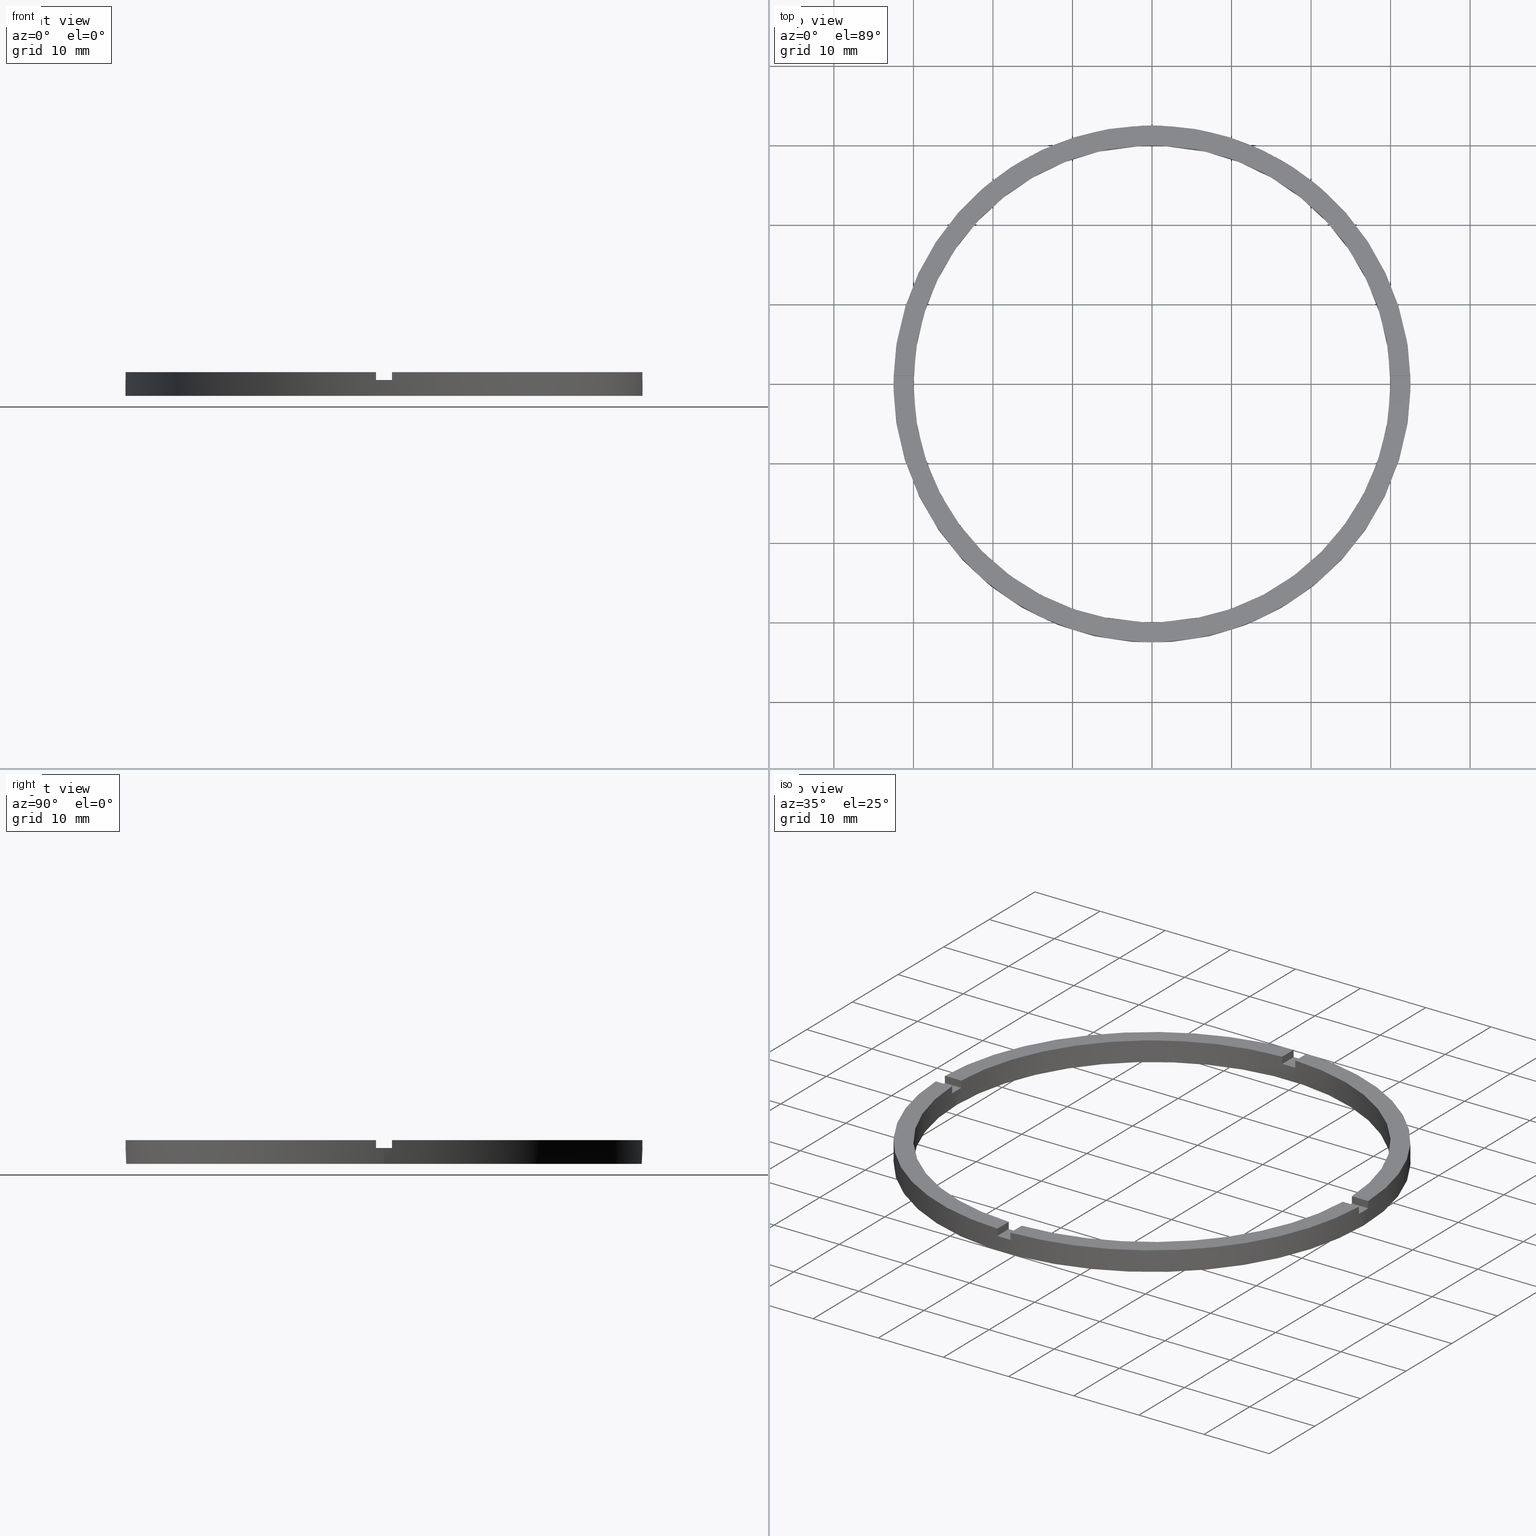
[diagram: canonical four-view strip — front | top / right | iso, engineering-drawing reading convention]
A machine part, canonical four-view strip (front | top / right | iso — engineering-drawing reading convention). The complete STEP part file that produces these views, byte-faithful:
ISO-10303-21;
HEADER;
FILE_DESCRIPTION (( 'STEP AP203' ),
    '1' );
FILE_NAME ('514135.step',
    '2024-12-26T02:40:53',
    ( 'MSI' ),
    ( '' ),
    'SwSTEP 2.0',
    'SolidWorks 2020',
    '' );
FILE_SCHEMA (( 'CONFIG_CONTROL_DESIGN' ));
ENDSEC;

DATA;
#1 = AXIS2_PLACEMENT_3D ( 'NONE', #757, #752, #563 ) ;
#2 = DIRECTION ( 'NONE',  ( -0.000000000000000000, -0.000000000000000000, -1.000000000000000000 ) ) ;
#3 = AXIS2_PLACEMENT_3D ( 'NONE', #539, #257, #454 ) ;
#4 = EDGE_CURVE ( 'NONE', #588, #58, #573, .T. ) ;
#5 = PLANE ( 'NONE',  #286 ) ;
#6 = EDGE_CURVE ( 'NONE', #388, #27, #32, .T. ) ;
#7 = CARTESIAN_POINT ( 'NONE',  ( -1.000000000000161648, -29.98332870112989212, 2.000000000000000000 ) ) ;
#8 = PLANE ( 'NONE',  #88 ) ;
#9 = FACE_OUTER_BOUND ( 'NONE', #36, .T. ) ;
#10 = PERSON_AND_ORGANIZATION_ROLE ( 'creator' ) ;
#11 = VECTOR ( 'NONE', #478, 1000.000000000000000 ) ;
#12 = CYLINDRICAL_SURFACE ( 'NONE', #142, 32.50000000000000000 ) ;
#13 = DIRECTION ( 'NONE',  ( 1.000000000000000000, 0.000000000000000000, 0.000000000000000000 ) ) ;
#14 = CARTESIAN_POINT ( 'NONE',  ( 0.000000000000000000, 0.000000000000000000, 0.000000000000000000 ) ) ;
#15 = AXIS2_PLACEMENT_3D ( 'NONE', #90, #268, #776 ) ;
#16 = CARTESIAN_POINT ( 'NONE',  ( -32.50000000000000000, 0.000000000000000000, 2.000000000000000000 ) ) ;
#17 = DIRECTION ( 'NONE',  ( 0.000000000000000000, 0.000000000000000000, 1.000000000000000000 ) ) ;
#18 = VECTOR ( 'NONE', #780, 1000.000000000000000 ) ;
#19 = FACE_OUTER_BOUND ( 'NONE', #40, .T. ) ;
#20 = EDGE_CURVE ( 'NONE', #311, #689, #566, .T. ) ;
#21 = VECTOR ( 'NONE', #762, 1000.000000000000000 ) ;
#22 = CARTESIAN_POINT ( 'NONE',  ( -32.50000000000000000, 0.000000000000000000, 3.000000000000000000 ) ) ;
#23 = LINE ( 'NONE', #578, #48 ) ;
#24 = CIRCLE ( 'NONE', #522, 30.00000000000000000 ) ;
#25 = FACE_OUTER_BOUND ( 'NONE', #698, .T. ) ;
#26 = CARTESIAN_POINT ( 'NONE',  ( -1.000000000000024647, 22.50000000000000000, 3.000000000000000000 ) ) ;
#27 = VERTEX_POINT ( 'NONE', #102 ) ;
#28 = FACE_OUTER_BOUND ( 'NONE', #178, .T. ) ;
#29 = VECTOR ( 'NONE', #495, 1000.000000000000000 ) ;
#30 = DIRECTION ( 'NONE',  ( 1.000000000000000000, 0.000000000000000000, 0.000000000000000000 ) ) ;
#31 = LINE ( 'NONE', #137, #572 ) ;
#32 = CIRCLE ( 'NONE', #15, 32.50000000000000000 ) ;
#33 = DIRECTION ( 'NONE',  ( 0.000000000000000000, 0.000000000000000000, 1.000000000000000000 ) ) ;
#34 = LINE ( 'NONE', #717, #310 ) ;
#35 = FACE_OUTER_BOUND ( 'NONE', #357, .T. ) ;
#36 = EDGE_LOOP ( 'NONE', ( #430, #467, #368, #706 ) ) ;
#37 = CARTESIAN_POINT ( 'NONE',  ( -1.000000000000161426, -32.48461174156157227, 2.000000000000000000 ) ) ;
#38 = CYLINDRICAL_SURFACE ( 'NONE', #657, 32.50000000000000000 ) ;
#39 = VECTOR ( 'NONE', #409, 1000.000000000000000 ) ;
#40 = EDGE_LOOP ( 'NONE', ( #283, #575, #571, #185 ) ) ;
#41 = PRODUCT_DEFINITION ( 'δ֪', '', #391, #686 ) ;
#42 = DIRECTION ( 'NONE',  ( -0.000000000000000000, -0.000000000000000000, -1.000000000000000000 ) ) ;
#43 = LINE ( 'NONE', #92, #574 ) ;
#44 = AXIS2_PLACEMENT_3D ( 'NONE', #399, #402, #449 ) ;
#45 = VECTOR ( 'NONE', #623, 1000.000000000000000 ) ;
#46 = ORIENTED_EDGE ( 'NONE', *, *, #271, .T. ) ;
#47 = LINE ( 'NONE', #389, #45 ) ;
#48 = VECTOR ( 'NONE', #485, 1000.000000000000000 ) ;
#49 = VERTEX_POINT ( 'NONE', #536 ) ;
#50 = LINE ( 'NONE', #152, #582 ) ;
#51 = CARTESIAN_POINT ( 'NONE',  ( 22.49999999999999645, 0.9999999999998409050, 2.000000000000000000 ) ) ;
#52 = FACE_OUTER_BOUND ( 'NONE', #708, .T. ) ;
#53 = ADVANCED_FACE ( 'NONE', ( #296 ), #12, .T. ) ;
#54 = CC_DESIGN_APPROVAL ( #81, ( #41 ) ) ;
#55 = LINE ( 'NONE', #413, #319 ) ;
#56 = VECTOR ( 'NONE', #729, 1000.000000000000000 ) ;
#57 = AXIS2_PLACEMENT_3D ( 'NONE', #190, #134, #516 ) ;
#58 = VERTEX_POINT ( 'NONE', #16 ) ;
#59 = VECTOR ( 'NONE', #617, 1000.000000000000000 ) ;
#60 = EDGE_CURVE ( 'NONE', #422, #168, #285, .T. ) ;
#61 = EDGE_CURVE ( 'NONE', #425, #439, #553, .T. ) ;
#62 = DIRECTION ( 'NONE',  ( 0.000000000000000000, 0.000000000000000000, 1.000000000000000000 ) ) ;
#63 = ADVANCED_FACE ( 'NONE', ( #35 ), #38, .T. ) ;
#64 = CARTESIAN_POINT ( 'NONE',  ( 32.50000000000000000, 3.980102097228898626E-15, 2.000000000000000000 ) ) ;
#65 = ORIENTED_EDGE ( 'NONE', *, *, #513, .T. ) ;
#66 = CARTESIAN_POINT ( 'NONE',  ( 0.000000000000000000, 0.000000000000000000, 3.000000000000000000 ) ) ;
#67 = DIRECTION ( 'NONE',  ( -1.000000000000000000, 0.000000000000000000, 0.000000000000000000 ) ) ;
#68 = ORIENTED_EDGE ( 'NONE', *, *, #244, .T. ) ;
#69 = ORIENTED_EDGE ( 'NONE', *, *, #490, .T. ) ;
#70 = DIRECTION ( 'NONE',  ( 1.000000000000000000, 1.951563910473908228E-16, -0.000000000000000000 ) ) ;
#71 = ORIENTED_EDGE ( 'NONE', *, *, #417, .F. ) ;
#72 = CARTESIAN_POINT ( 'NONE',  ( 32.48461174156157227, -1.000000000000158540, 3.000000000000000000 ) ) ;
#73 = ORIENTED_EDGE ( 'NONE', *, *, #781, .F. ) ;
#74 = EDGE_LOOP ( 'NONE', ( #694, #683, #577, #177, #69, #737, #479, #455, #714, #621, #173, #695 ) ) ;
#75 = DIRECTION ( 'NONE',  ( -0.000000000000000000, 0.000000000000000000, 1.000000000000000000 ) ) ;
#76 = CARTESIAN_POINT ( 'NONE',  ( 29.98332870112989212, -1.000000000000158762, 3.000000000000000000 ) ) ;
#77 = ORIENTED_EDGE ( 'NONE', *, *, #60, .F. ) ;
#78 = DIRECTION ( 'NONE',  ( 1.000000000000000000, 0.000000000000000000, 0.000000000000000000 ) ) ;
#79 = CARTESIAN_POINT ( 'NONE',  ( 22.49999999999999645, 0.9999999999998409050, 2.000000000000000000 ) ) ;
#80 = VERTEX_POINT ( 'NONE', #774 ) ;
#81 = APPROVAL ( #518, 'δָ��' ) ;
#82 = DATE_TIME_ROLE ( 'creation_date' ) ;
#83 = ORIENTED_EDGE ( 'NONE', *, *, #267, .T. ) ;
#84 = DIRECTION ( 'NONE',  ( 1.000000000000000000, 0.000000000000000000, 0.000000000000000000 ) ) ;
#85 = CARTESIAN_POINT ( 'NONE',  ( -32.48461174156157227, -1.000000000000025979, 3.000000000000000000 ) ) ;
#86 = FACE_OUTER_BOUND ( 'NONE', #739, .T. ) ;
#87 = VECTOR ( 'NONE', #70, 1000.000000000000000 ) ;
#88 = AXIS2_PLACEMENT_3D ( 'NONE', #533, #496, #352 ) ;
#89 = FACE_OUTER_BOUND ( 'NONE', #427, .T. ) ;
#90 = CARTESIAN_POINT ( 'NONE',  ( 0.000000000000000000, 0.000000000000000000, 3.000000000000000000 ) ) ;
#91 = EDGE_CURVE ( 'NONE', #600, #677, #540, .T. ) ;
#92 = CARTESIAN_POINT ( 'NONE',  ( -1.000000000000024647, 32.48461174156157227, 3.000000000000000000 ) ) ;
#93 = EDGE_CURVE ( 'NONE', #476, #731, #542, .T. ) ;
#94 = VECTOR ( 'NONE', #772, 1000.000000000000000 ) ;
#95 = CARTESIAN_POINT ( 'NONE',  ( -22.50000000000018474, -1.000000000000023981, 2.000000000000000000 ) ) ;
#96 = ORIENTED_EDGE ( 'NONE', *, *, #273, .F. ) ;
#97 = AXIS2_PLACEMENT_3D ( 'NONE', #652, #770, #30 ) ;
#98 = ORIENTED_EDGE ( 'NONE', *, *, #316, .F. ) ;
#99 = DIRECTION ( 'NONE',  ( -1.000000000000000000, -1.951563910473908228E-16, 0.000000000000000000 ) ) ;
#100 = ORIENTED_EDGE ( 'NONE', *, *, #316, .T. ) ;
#101 = LINE ( 'NONE', #280, #370 ) ;
#102 = CARTESIAN_POINT ( 'NONE',  ( 0.9999999999999753530, 32.48461174156157227, 3.000000000000000000 ) ) ;
#103 = EDGE_CURVE ( 'NONE', #705, #333, #557, .T. ) ;
#104 = ORIENTED_EDGE ( 'NONE', *, *, #506, .T. ) ;
#105 = VECTOR ( 'NONE', #263, 1000.000000000000000 ) ;
#106 = CARTESIAN_POINT ( 'NONE',  ( -32.48461174156157227, -1.000000000000025979, 2.000000000000000000 ) ) ;
#107 = CARTESIAN_POINT ( 'NONE',  ( 0.000000000000000000, 0.000000000000000000, 0.000000000000000000 ) ) ;
#108 = CC_DESIGN_DATE_AND_TIME_ASSIGNMENT ( #722, #753, ( #269 ) ) ;
#109 = LINE ( 'NONE', #274, #358 ) ;
#110 = CARTESIAN_POINT ( 'NONE',  ( -29.98332870112989568, -1.000000000000025535, 3.000000000000000000 ) ) ;
#111 = ADVANCED_FACE ( 'NONE', ( #288 ), #740, .F. ) ;
#112 = FACE_OUTER_BOUND ( 'NONE', #596, .T. ) ;
#113 = VECTOR ( 'NONE', #408, 1000.000000000000000 ) ;
#114 = CIRCLE ( 'NONE', #543, 32.50000000000000000 ) ;
#115 = DIRECTION ( 'NONE',  ( 0.000000000000000000, 0.000000000000000000, 1.000000000000000000 ) ) ;
#116 = LINE ( 'NONE', #437, #382 ) ;
#117 = AXIS2_PLACEMENT_3D ( 'NONE', #360, #414, #419 ) ;
#118 = VECTOR ( 'NONE', #771, 1000.000000000000000 ) ;
#119 = FACE_OUTER_BOUND ( 'NONE', #188, .T. ) ;
#120 = DIRECTION ( 'NONE',  ( -1.000000000000000000, -1.301042606982605074E-16, 0.000000000000000000 ) ) ;
#121 = ADVANCED_FACE ( 'NONE', ( #9 ), #371, .F. ) ;
#122 = CARTESIAN_POINT ( 'NONE',  ( -29.98332870112989568, -1.000000000000025535, 2.000000000000000000 ) ) ;
#123 = CIRCLE ( 'NONE', #520, 30.00000000000000000 ) ;
#124 = CC_DESIGN_PERSON_AND_ORGANIZATION_ASSIGNMENT ( #227, #693, ( #324 ) ) ;
#125 = DIRECTION ( 'NONE',  ( 1.301042606982605074E-16, -1.000000000000000000, 0.000000000000000000 ) ) ;
#126 = DIRECTION ( 'NONE',  ( 1.000000000000000000, 0.000000000000000000, -0.000000000000000000 ) ) ;
#127 = VECTOR ( 'NONE', #541, 1000.000000000000000 ) ;
#128 = PLANE ( 'NONE',  #690 ) ;
#129 = AXIS2_PLACEMENT_3D ( 'NONE', #746, #783, #67 ) ;
#130 = CARTESIAN_POINT ( 'NONE',  ( -32.50000000000000000, 0.000000000000000000, 0.000000000000000000 ) ) ;
#131 = PLANE ( 'NONE',  #601 ) ;
#132 = EDGE_CURVE ( 'NONE', #585, #80, #24, .T. ) ;
#133 = EDGE_CURVE ( 'NONE', #420, #27, #278, .T. ) ;
#134 = DIRECTION ( 'NONE',  ( -0.000000000000000000, 0.000000000000000000, 1.000000000000000000 ) ) ;
#135 = EDGE_CURVE ( 'NONE', #422, #147, #279, .T. ) ;
#136 = PLANE ( 'NONE',  #412 ) ;
#137 = CARTESIAN_POINT ( 'NONE',  ( 32.48461174156157938, 0.9999999999998414602, 3.000000000000000000 ) ) ;
#138 = CARTESIAN_POINT ( 'NONE',  ( 0.9999999999999753530, 29.98332870112989923, 2.000000000000000000 ) ) ;
#139 = APPROVAL_STATUS ( 'not_yet_approved' ) ;
#140 = CARTESIAN_POINT ( 'NONE',  ( 0.000000000000000000, 0.000000000000000000, 2.000000000000000000 ) ) ;
#141 = CARTESIAN_POINT ( 'NONE',  ( 29.98332870112989212, -1.000000000000158762, 3.000000000000000000 ) ) ;
#142 = AXIS2_PLACEMENT_3D ( 'NONE', #603, #154, #764 ) ;
#143 = CARTESIAN_POINT ( 'NONE',  ( -1.000000000000024647, 22.50000000000000000, 2.000000000000000000 ) ) ;
#144 = ORIENTED_EDGE ( 'NONE', *, *, #648, .T. ) ;
#145 = DIRECTION ( 'NONE',  ( 1.000000000000000000, 0.000000000000000000, -0.000000000000000000 ) ) ;
#146 = ORIENTED_EDGE ( 'NONE', *, *, #251, .F. ) ;
#147 = VERTEX_POINT ( 'NONE', #72 ) ;
#148 = EDGE_CURVE ( 'NONE', #356, #49, #554, .T. ) ;
#149 = PLANE ( 'NONE',  #748 ) ;
#150 = ORIENTED_EDGE ( 'NONE', *, *, #701, .F. ) ;
#151 = VERTEX_POINT ( 'NONE', #691 ) ;
#152 = CARTESIAN_POINT ( 'NONE',  ( 0.9999999999999753530, 29.98332870112989923, 3.000000000000000000 ) ) ;
#153 = ORIENTED_EDGE ( 'NONE', *, *, #103, .F. ) ;
#154 = DIRECTION ( 'NONE',  ( -0.000000000000000000, -0.000000000000000000, -1.000000000000000000 ) ) ;
#155 = CARTESIAN_POINT ( 'NONE',  ( 0.000000000000000000, 0.000000000000000000, 2.000000000000000000 ) ) ;
#156 = EDGE_LOOP ( 'NONE', ( #196, #157, #458, #453 ) ) ;
#157 = ORIENTED_EDGE ( 'NONE', *, *, #417, .T. ) ;
#158 = DIRECTION ( 'NONE',  ( 0.000000000000000000, 0.000000000000000000, 1.000000000000000000 ) ) ;
#159 = ORIENTED_EDGE ( 'NONE', *, *, #267, .F. ) ;
#160 = ADVANCED_FACE ( 'NONE', ( #19 ), #5, .F. ) ;
#161 = ORIENTED_EDGE ( 'NONE', *, *, #166, .F. ) ;
#162 = CARTESIAN_POINT ( 'NONE',  ( 0.9999999999999753530, 22.50000000000000000, 2.000000000000000000 ) ) ;
#163 = VERTEX_POINT ( 'NONE', #138 ) ;
#164 = VERTEX_POINT ( 'NONE', #258 ) ;
#165 = ORIENTED_EDGE ( 'NONE', *, *, #246, .F. ) ;
#166 = EDGE_CURVE ( 'NONE', #439, #434, #289, .T. ) ;
#167 = ORIENTED_EDGE ( 'NONE', *, *, #428, .T. ) ;
#168 = VERTEX_POINT ( 'NONE', #570 ) ;
#169 = EDGE_LOOP ( 'NONE', ( #702, #144 ) ) ;
#170 = DIRECTION ( 'NONE',  ( 1.000000000000000000, 0.000000000000000000, -0.000000000000000000 ) ) ;
#171 = ORIENTED_EDGE ( 'NONE', *, *, #606, .T. ) ;
#172 = ORIENTED_EDGE ( 'NONE', *, *, #326, .F. ) ;
#173 = ORIENTED_EDGE ( 'NONE', *, *, #661, .T. ) ;
#174 = ORIENTED_EDGE ( 'NONE', *, *, #326, .T. ) ;
#175 = EDGE_CURVE ( 'NONE', #452, #446, #545, .T. ) ;
#176 = ORIENTED_EDGE ( 'NONE', *, *, #132, .F. ) ;
#177 = ORIENTED_EDGE ( 'NONE', *, *, #265, .F. ) ;
#178 = EDGE_LOOP ( 'NONE', ( #718, #704, #96, #613 ) ) ;
#179 = ORIENTED_EDGE ( 'NONE', *, *, #271, .F. ) ;
#180 = LOCAL_TIME ( 10, 40, 53.00000000000000000, #473 ) ;
#181 = CARTESIAN_POINT ( 'NONE',  ( 0.000000000000000000, 0.000000000000000000, 2.000000000000000000 ) ) ;
#182 = ORIENTED_EDGE ( 'NONE', *, *, #515, .T. ) ;
#183 = ORIENTED_EDGE ( 'NONE', *, *, #611, .T. ) ;
#184 = CALENDAR_DATE ( 2024, 26, 12 ) ;
#185 = ORIENTED_EDGE ( 'NONE', *, *, #515, .F. ) ;
#186 = ORIENTED_EDGE ( 'NONE', *, *, #749, .T. ) ;
#187 = APPROVAL_DATE_TIME ( #728, #81 ) ;
#188 = EDGE_LOOP ( 'NONE', ( #465, #699, #378, #165, #712, #100 ) ) ;
#189 = ORIENTED_EDGE ( 'NONE', *, *, #148, .F. ) ;
#190 = CARTESIAN_POINT ( 'NONE',  ( 0.000000000000000000, 0.000000000000000000, 2.000000000000000000 ) ) ;
#191 = ORIENTED_EDGE ( 'NONE', *, *, #244, .F. ) ;
#192 = ORIENTED_EDGE ( 'NONE', *, *, #749, .F. ) ;
#193 = CARTESIAN_POINT ( 'NONE',  ( 0.000000000000000000, 0.000000000000000000, 3.000000000000000000 ) ) ;
#194 = ORIENTED_EDGE ( 'NONE', *, *, #4, .T. ) ;
#195 = PERSON_AND_ORGANIZATION ( #220, #719 ) ;
#196 = ORIENTED_EDGE ( 'NONE', *, *, #707, .T. ) ;
#197 = AXIS2_PLACEMENT_3D ( 'NONE', #559, #75, #305 ) ;
#198 = APPROVAL_PERSON_ORGANIZATION ( #480, #696, #224 ) ;
#199 = AXIS2_PLACEMENT_3D ( 'NONE', #229, #767, #145 ) ;
#200 = EDGE_LOOP ( 'NONE', ( #315, #176, #482, #460 ) ) ;
#201 = COORDINATED_UNIVERSAL_TIME_OFFSET ( 8, 0, .AHEAD. ) ;
#202 =( NAMED_UNIT ( * ) SI_UNIT ( $, .STERADIAN. ) SOLID_ANGLE_UNIT ( ) );
#203 = ORIENTED_EDGE ( 'NONE', *, *, #93, .T. ) ;
#204 = ADVANCED_FACE ( 'NONE', ( #294 ), #128, .F. ) ;
#205 = DIRECTION ( 'NONE',  ( 0.000000000000000000, 0.000000000000000000, 1.000000000000000000 ) ) ;
#206 = LOCAL_TIME ( 10, 40, 53.00000000000000000, #503 ) ;
#207 = CALENDAR_DATE ( 2024, 26, 12 ) ;
#208 = CC_DESIGN_APPROVAL ( #696, ( #391 ) ) ;
#209 = ORIENTED_EDGE ( 'NONE', *, *, #217, .T. ) ;
#210 = DATE_AND_TIME ( #184, #469 ) ;
#211 = DIRECTION ( 'NONE',  ( 0.000000000000000000, 0.000000000000000000, 1.000000000000000000 ) ) ;
#212 = AXIS2_PLACEMENT_3D ( 'NONE', #761, #222, #338 ) ;
#213 = EDGE_CURVE ( 'NONE', #727, #418, #562, .T. ) ;
#214 = APPROVAL_DATE_TIME ( #210, #730 ) ;
#215 = DIRECTION ( 'NONE',  ( -1.000000000000000000, 0.000000000000000000, 0.000000000000000000 ) ) ;
#216 = EDGE_LOOP ( 'NONE', ( #340, #353, #71, #77 ) ) ;
#217 = EDGE_CURVE ( 'NONE', #356, #443, #308, .T. ) ;
#218 = APPROVAL_PERSON_ORGANIZATION ( #475, #81, #565 ) ;
#219 = DIRECTION ( 'NONE',  ( -1.000000000000000000, -6.505213034913022906E-17, 0.000000000000000000 ) ) ;
#220 = PERSON ( 'δָ��', 'δָ��', 'δָ��', ('δָ��'), ('δָ��'), ('δָ��') ) ;
#221 = DIRECTION ( 'NONE',  ( 0.000000000000000000, 0.000000000000000000, 1.000000000000000000 ) ) ;
#222 = DIRECTION ( 'NONE',  ( 0.000000000000000000, 0.000000000000000000, 1.000000000000000000 ) ) ;
#223 = PLANE ( 'NONE',  #447 ) ;
#224 = APPROVAL_ROLE ( '' ) ;
#225 = CARTESIAN_POINT ( 'NONE',  ( 0.9999999999998384625, -29.98332870112990278, 3.000000000000000000 ) ) ;
#226 = DIRECTION ( 'NONE',  ( 0.000000000000000000, 1.000000000000000000, 0.000000000000000000 ) ) ;
#227 = PERSON_AND_ORGANIZATION ( #220, #719 ) ;
#228 = DIRECTION ( 'NONE',  ( -0.000000000000000000, -1.000000000000000000, -0.000000000000000000 ) ) ;
#229 = CARTESIAN_POINT ( 'NONE',  ( 0.000000000000000000, 0.000000000000000000, 2.000000000000000000 ) ) ;
#230 = PERSON_AND_ORGANIZATION ( #220, #719 ) ;
#231 = DATE_AND_TIME ( #735, #732 ) ;
#232 = CARTESIAN_POINT ( 'NONE',  ( 0.9999999999998375744, -22.50000000000018119, 2.000000000000000000 ) ) ;
#233 = DIRECTION ( 'NONE',  ( 1.000000000000000000, 6.505213034913022906E-17, 0.000000000000000000 ) ) ;
#234 = CARTESIAN_POINT ( 'NONE',  ( 0.9999999999998386846, -32.48461174156157938, 3.000000000000000000 ) ) ;
#235 = CARTESIAN_POINT ( 'NONE',  ( 0.9999999999998384625, -29.98332870112990278, 2.000000000000000000 ) ) ;
#236 = DIRECTION ( 'NONE',  ( 1.000000000000000000, 0.000000000000000000, 0.000000000000000000 ) ) ;
#237 = AXIS2_PLACEMENT_3D ( 'NONE', #424, #375, #665 ) ;
#238 = AXIS2_PLACEMENT_3D ( 'NONE', #662, #666, #248 ) ;
#239 = DIRECTION ( 'NONE',  ( -0.000000000000000000, -0.000000000000000000, -1.000000000000000000 ) ) ;
#240 = CIRCLE ( 'NONE', #745, 30.00000000000000000 ) ;
#241 = DIRECTION ( 'NONE',  ( 0.000000000000000000, 0.000000000000000000, 1.000000000000000000 ) ) ;
#242 = CC_DESIGN_PERSON_AND_ORGANIZATION_ASSIGNMENT ( #230, #10, ( #41 ) ) ;
#243 = AXIS2_PLACEMENT_3D ( 'NONE', #140, #405, #523 ) ;
#244 = EDGE_CURVE ( 'NONE', #635, #716, #47, .T. ) ;
#245 = CARTESIAN_POINT ( 'NONE',  ( 32.50000000000000000, 3.980102097228898626E-15, 3.000000000000000000 ) ) ;
#246 = EDGE_CURVE ( 'NONE', #673, #689, #312, .T. ) ;
#247 = EDGE_CURVE ( 'NONE', #364, #625, #576, .T. ) ;
#248 = DIRECTION ( 'NONE',  ( -1.000000000000000000, -1.951563910473908228E-16, 0.000000000000000000 ) ) ;
#249 = DIRECTION ( 'NONE',  ( 0.000000000000000000, 0.000000000000000000, 1.000000000000000000 ) ) ;
#250 = ADVANCED_FACE ( 'NONE', ( #579 ), #223, .T. ) ;
#251 = EDGE_CURVE ( 'NONE', #163, #80, #50, .T. ) ;
#252 = DIRECTION ( 'NONE',  ( 1.000000000000000000, 0.000000000000000000, 0.000000000000000000 ) ) ;
#253 = CARTESIAN_POINT ( 'NONE',  ( 32.48461174156157938, 0.9999999999998414602, 3.000000000000000000 ) ) ;
#254 = CC_DESIGN_APPROVAL ( #730, ( #269 ) ) ;
#255 = DIRECTION ( 'NONE',  ( 1.000000000000000000, 0.000000000000000000, 0.000000000000000000 ) ) ;
#256 = DIRECTION ( 'NONE',  ( 1.000000000000000000, 0.000000000000000000, 0.000000000000000000 ) ) ;
#257 = DIRECTION ( 'NONE',  ( 0.000000000000000000, 0.000000000000000000, 1.000000000000000000 ) ) ;
#258 = CARTESIAN_POINT ( 'NONE',  ( -1.000000000000024647, 32.48461174156157227, 2.000000000000000000 ) ) ;
#259 = CARTESIAN_POINT ( 'NONE',  ( -1.000000000000024647, 29.98332870112989568, 3.000000000000000000 ) ) ;
#260 = CARTESIAN_POINT ( 'NONE',  ( 0.000000000000000000, 0.000000000000000000, 3.000000000000000000 ) ) ;
#261 = AXIS2_PLACEMENT_3D ( 'NONE', #667, #62, #252 ) ;
#262 = APPLICATION_CONTEXT ( 'configuration controlled 3d designs of mechanical parts and assemblies' ) ;
#263 = DIRECTION ( 'NONE',  ( -1.301042606982605074E-16, 1.000000000000000000, -0.000000000000000000 ) ) ;
#264 = AXIS2_PLACEMENT_3D ( 'NONE', #260, #406, #13 ) ;
#265 = EDGE_CURVE ( 'NONE', #351, #727, #55, .T. ) ;
#266 = DIRECTION ( 'NONE',  ( 0.000000000000000000, 1.000000000000000000, 0.000000000000000000 ) ) ;
#267 = EDGE_CURVE ( 'NONE', #58, #443, #586, .T. ) ;
#268 = DIRECTION ( 'NONE',  ( 0.000000000000000000, 0.000000000000000000, 1.000000000000000000 ) ) ;
#269 = SECURITY_CLASSIFICATION ( '', '', #404 ) ;
#270 = CARTESIAN_POINT ( 'NONE',  ( 29.98332870112990278, 0.9999999999998412381, 3.000000000000000000 ) ) ;
#271 = EDGE_CURVE ( 'NONE', #457, #147, #109, .T. ) ;
#272 = DIRECTION ( 'NONE',  ( 0.000000000000000000, 0.000000000000000000, 1.000000000000000000 ) ) ;
#273 = EDGE_CURVE ( 'NONE', #443, #677, #619, .T. ) ;
#274 = CARTESIAN_POINT ( 'NONE',  ( 22.49999999999999645, -1.000000000000159206, 3.000000000000000000 ) ) ;
#275 = VECTOR ( 'NONE', #282, 1000.000000000000000 ) ;
#276 = CARTESIAN_POINT ( 'NONE',  ( -29.98332870112989923, 0.9999999999999744649, 3.000000000000000000 ) ) ;
#277 = CARTESIAN_POINT ( 'NONE',  ( -29.98332870112989923, 0.9999999999999744649, 2.000000000000000000 ) ) ;
#278 = LINE ( 'NONE', #710, #11 ) ;
#279 = CIRCLE ( 'NONE', #624, 32.50000000000000000 ) ;
#280 = CARTESIAN_POINT ( 'NONE',  ( 0.9999999999999753530, 22.50000000000000000, 3.000000000000000000 ) ) ;
#281 = ADVANCED_FACE ( 'NONE', ( #630, #365 ), #410, .F. ) ;
#282 = DIRECTION ( 'NONE',  ( -0.000000000000000000, -0.000000000000000000, -1.000000000000000000 ) ) ;
#283 = ORIENTED_EDGE ( 'NONE', *, *, #751, .T. ) ;
#284 = DIRECTION ( 'NONE',  ( 1.000000000000000000, -0.000000000000000000, 0.000000000000000000 ) ) ;
#285 = LINE ( 'NONE', #234, #302 ) ;
#286 = AXIS2_PLACEMENT_3D ( 'NONE', #79, #432, #219 ) ;
#287 = EDGE_LOOP ( 'NONE', ( #174, #68, #720, #290 ) ) ;
#288 = FACE_OUTER_BOUND ( 'NONE', #592, .T. ) ;
#289 = LINE ( 'NONE', #517, #555 ) ;
#290 = ORIENTED_EDGE ( 'NONE', *, *, #530, .F. ) ;
#291 = ADVANCED_FACE ( 'NONE', ( #112 ), #647, .T. ) ;
#292 = ORIENTED_EDGE ( 'NONE', *, *, #394, .F. ) ;
#293 = CARTESIAN_POINT ( 'NONE',  ( 0.000000000000000000, 0.000000000000000000, 3.000000000000000000 ) ) ;
#294 = FACE_OUTER_BOUND ( 'NONE', #598, .T. ) ;
#295 = CIRCLE ( 'NONE', #660, 32.50000000000000000 ) ;
#296 = FACE_OUTER_BOUND ( 'NONE', #548, .T. ) ;
#297 = FACE_OUTER_BOUND ( 'NONE', #200, .T. ) ;
#298 = DIRECTION ( 'NONE',  ( 0.000000000000000000, 0.000000000000000000, 1.000000000000000000 ) ) ;
#299 =( GEOMETRIC_REPRESENTATION_CONTEXT ( 3 ) GLOBAL_UNCERTAINTY_ASSIGNED_CONTEXT ( ( #656 ) ) GLOBAL_UNIT_ASSIGNED_CONTEXT ( ( #609, #747, #202 ) ) REPRESENTATION_CONTEXT ( 'NONE', 'WORKASPACE' ) );
#300 = ORIENTED_EDGE ( 'NONE', *, *, #564, .T. ) ;
#301 = ORIENTED_EDGE ( 'NONE', *, *, #675, .T. ) ;
#302 = VECTOR ( 'NONE', #239, 1000.000000000000000 ) ;
#303 = ORIENTED_EDGE ( 'NONE', *, *, #6, .F. ) ;
#304 = CIRCLE ( 'NONE', #527, 30.00000000000000000 ) ;
#305 = DIRECTION ( 'NONE',  ( 1.000000000000000000, 0.000000000000000000, 0.000000000000000000 ) ) ;
#306 = VECTOR ( 'NONE', #99, 1000.000000000000000 ) ;
#307 = CIRCLE ( 'NONE', #264, 30.00000000000000000 ) ;
#308 = LINE ( 'NONE', #85, #59 ) ;
#309 = DIRECTION ( 'NONE',  ( 1.000000000000000000, 0.000000000000000000, 0.000000000000000000 ) ) ;
#310 = VECTOR ( 'NONE', #33, 1000.000000000000000 ) ;
#311 = VERTEX_POINT ( 'NONE', #721 ) ;
#312 = CIRCLE ( 'NONE', #766, 30.00000000000000000 ) ;
#313 = CIRCLE ( 'NONE', #551, 30.00000000000000000 ) ;
#314 = CARTESIAN_POINT ( 'NONE',  ( 22.49999999999999645, 0.9999999999998409050, 3.000000000000000000 ) ) ;
#315 = ORIENTED_EDGE ( 'NONE', *, *, #350, .F. ) ;
#316 = EDGE_CURVE ( 'NONE', #631, #364, #385, .T. ) ;
#317 = LINE ( 'NONE', #778, #56 ) ;
#318 = ORIENTED_EDGE ( 'NONE', *, *, #513, .F. ) ;
#319 = VECTOR ( 'NONE', #348, 1000.000000000000000 ) ;
#320 = LINE ( 'NONE', #498, #374 ) ;
#321 = ORIENTED_EDGE ( 'NONE', *, *, #661, .F. ) ;
#322 = DIRECTION ( 'NONE',  ( 6.505213034913022906E-17, -1.000000000000000000, 0.000000000000000000 ) ) ;
#323 = DIRECTION ( 'NONE',  ( -1.000000000000000000, -6.505213034913022906E-17, -0.000000000000000000 ) ) ;
#324 = PRODUCT ( '514135', '514135', '', ( #521 ) ) ;
#325 = ORIENTED_EDGE ( 'NONE', *, *, #133, .F. ) ;
#326 = EDGE_CURVE ( 'NONE', #456, #635, #392, .T. ) ;
#327 = ORIENTED_EDGE ( 'NONE', *, *, #556, .F. ) ;
#328 = CARTESIAN_POINT ( 'NONE',  ( 22.49999999999999645, -1.000000000000159206, 2.000000000000000000 ) ) ;
#329 = CARTESIAN_POINT ( 'NONE',  ( -1.000000000000162537, -22.50000000000018119, 3.000000000000000000 ) ) ;
#330 = CARTESIAN_POINT ( 'NONE',  ( 0.9999999999999753530, 32.48461174156157227, 2.000000000000000000 ) ) ;
#331 = EDGE_LOOP ( 'NONE', ( #73, #487, #342, #622 ) ) ;
#332 = CARTESIAN_POINT ( 'NONE',  ( 0.000000000000000000, 0.000000000000000000, 2.000000000000000000 ) ) ;
#333 = VERTEX_POINT ( 'NONE', #37 ) ;
#334 = PERSON_AND_ORGANIZATION_ROLE ( 'creator' ) ;
#335 = EDGE_LOOP ( 'NONE', ( #713, #723 ) ) ;
#336 = CARTESIAN_POINT ( 'NONE',  ( 0.9999999999999753530, 22.50000000000000000, 2.000000000000000000 ) ) ;
#337 = ORIENTED_EDGE ( 'NONE', *, *, #606, .F. ) ;
#338 = DIRECTION ( 'NONE',  ( 1.000000000000000000, 0.000000000000000000, 0.000000000000000000 ) ) ;
#339 = AXIS2_PLACEMENT_3D ( 'NONE', #14, #550, #309 ) ;
#340 = ORIENTED_EDGE ( 'NONE', *, *, #602, .T. ) ;
#341 = CARTESIAN_POINT ( 'NONE',  ( -30.00000000000000000, 0.000000000000000000, 2.000000000000000000 ) ) ;
#342 = ORIENTED_EDGE ( 'NONE', *, *, #366, .F. ) ;
#343 = VECTOR ( 'NONE', #323, 1000.000000000000000 ) ;
#344 = CARTESIAN_POINT ( 'NONE',  ( 32.50000000000000000, 3.980102097228898626E-15, 0.000000000000000000 ) ) ;
#345 = ORIENTED_EDGE ( 'NONE', *, *, #707, .F. ) ;
#346 = AXIS2_PLACEMENT_3D ( 'NONE', #590, #567, #768 ) ;
#347 = EDGE_CURVE ( 'NONE', #731, #476, #643, .T. ) ;
#348 = DIRECTION ( 'NONE',  ( -0.000000000000000000, -0.000000000000000000, -1.000000000000000000 ) ) ;
#349 = CIRCLE ( 'NONE', #638, 30.00000000000000000 ) ;
#350 = EDGE_CURVE ( 'NONE', #80, #27, #101, .T. ) ;
#351 = VERTEX_POINT ( 'NONE', #341 ) ;
#352 = DIRECTION ( 'NONE',  ( 1.000000000000000000, 1.951563910473908228E-16, 0.000000000000000000 ) ) ;
#353 = ORIENTED_EDGE ( 'NONE', *, *, #175, .T. ) ;
#354 = ADVANCED_FACE ( 'NONE', ( #86 ), #620, .T. ) ;
#355 = CARTESIAN_POINT ( 'NONE',  ( -32.48461174156157227, 0.9999999999999740208, 3.000000000000000000 ) ) ;
#356 = VERTEX_POINT ( 'NONE', #511 ) ;
#357 = EDGE_LOOP ( 'NONE', ( #150, #183, #203, #470, #709, #301, #451, #674, #318, #589, #303, #182 ) ) ;
#358 = VECTOR ( 'NONE', #233, 1000.000000000000000 ) ;
#359 = DIRECTION ( 'NONE',  ( 0.000000000000000000, 0.000000000000000000, 1.000000000000000000 ) ) ;
#360 = CARTESIAN_POINT ( 'NONE',  ( 0.000000000000000000, 0.000000000000000000, 0.000000000000000000 ) ) ;
#361 = LINE ( 'NONE', #670, #87 ) ;
#362 = FACE_OUTER_BOUND ( 'NONE', #676, .T. ) ;
#363 = DIRECTION ( 'NONE',  ( -1.000000000000000000, -6.505213034913022906E-17, -0.000000000000000000 ) ) ;
#364 = VERTEX_POINT ( 'NONE', #547 ) ;
#365 = FACE_BOUND ( 'NONE', #169, .T. ) ;
#366 = EDGE_CURVE ( 'NONE', #356, #600, #361, .T. ) ;
#367 = ADVANCED_FACE ( 'NONE', ( #89 ), #131, .T. ) ;
#368 = ORIENTED_EDGE ( 'NONE', *, *, #166, .T. ) ;
#369 = LINE ( 'NONE', #336, #373 ) ;
#370 = VECTOR ( 'NONE', #266, 1000.000000000000000 ) ;
#371 = PLANE ( 'NONE',  #238 ) ;
#372 = ORIENTED_EDGE ( 'NONE', *, *, #251, .T. ) ;
#373 = VECTOR ( 'NONE', #226, 1000.000000000000000 ) ;
#374 = VECTOR ( 'NONE', #241, 1000.000000000000000 ) ;
#375 = DIRECTION ( 'NONE',  ( 1.000000000000000000, 1.301042606982605074E-16, 0.000000000000000000 ) ) ;
#376 = CIRCLE ( 'NONE', #243, 30.00000000000000000 ) ;
#377 = ADVANCED_FACE ( 'NONE', ( #632 ), #634, .F. ) ;
#378 = ORIENTED_EDGE ( 'NONE', *, *, #20, .T. ) ;
#379 = CIRCLE ( 'NONE', #212, 32.50000000000000000 ) ;
#380 = VECTOR ( 'NONE', #42, 1000.000000000000000 ) ;
#381 = VECTOR ( 'NONE', #488, 1000.000000000000000 ) ;
#382 = VECTOR ( 'NONE', #249, 1000.000000000000000 ) ;
#383 = DIRECTION ( 'NONE',  ( 1.000000000000000000, 0.000000000000000000, -0.000000000000000000 ) ) ;
#384 = AXIS2_PLACEMENT_3D ( 'NONE', #641, #464, #758 ) ;
#385 = LINE ( 'NONE', #769, #113 ) ;
#386 = AXIS2_PLACEMENT_3D ( 'NONE', #583, #359, #481 ) ;
#387 = ORIENTED_EDGE ( 'NONE', *, *, #504, .F. ) ;
#388 = VERTEX_POINT ( 'NONE', #253 ) ;
#389 = CARTESIAN_POINT ( 'NONE',  ( -1.000000000000024647, 29.98332870112989568, 3.000000000000000000 ) ) ;
#390 = CARTESIAN_POINT ( 'NONE',  ( 0.000000000000000000, 0.000000000000000000, 2.000000000000000000 ) ) ;
#391 = PRODUCT_DEFINITION_FORMATION_WITH_SPECIFIED_SOURCE ( '�κ�', '', #324, .NOT_KNOWN. ) ;
#392 = LINE ( 'NONE', #26, #94 ) ;
#393 = AXIS2_PLACEMENT_3D ( 'NONE', #162, #284, #655 ) ;
#394 = EDGE_CURVE ( 'NONE', #163, #420, #369, .T. ) ;
#395 = LINE ( 'NONE', #22, #118 ) ;
#396 = CARTESIAN_POINT ( 'NONE',  ( 0.000000000000000000, 0.000000000000000000, 2.000000000000000000 ) ) ;
#397 = FACE_OUTER_BOUND ( 'NONE', #287, .T. ) ;
#398 = EDGE_CURVE ( 'NONE', #631, #673, #376, .T. ) ;
#399 = CARTESIAN_POINT ( 'NONE',  ( 0.000000000000000000, 0.000000000000000000, 2.000000000000000000 ) ) ;
#400 = PERSON_AND_ORGANIZATION_ROLE ( 'design_supplier' ) ;
#401 = CARTESIAN_POINT ( 'NONE',  ( -1.000000000000024647, 32.48461174156157227, 3.000000000000000000 ) ) ;
#402 = DIRECTION ( 'NONE',  ( 0.000000000000000000, 0.000000000000000000, 1.000000000000000000 ) ) ;
#403 = MANIFOLD_SOLID_BREP ( '�г�-����1', #685 ) ;
#404 = SECURITY_CLASSIFICATION_LEVEL ( 'unclassified' ) ;
#405 = DIRECTION ( 'NONE',  ( 0.000000000000000000, 0.000000000000000000, 1.000000000000000000 ) ) ;
#406 = DIRECTION ( 'NONE',  ( 0.000000000000000000, 0.000000000000000000, 1.000000000000000000 ) ) ;
#407 = DIRECTION ( 'NONE',  ( -0.000000000000000000, -0.000000000000000000, -1.000000000000000000 ) ) ;
#408 = DIRECTION ( 'NONE',  ( 1.000000000000000000, 6.505213034913022906E-17, 0.000000000000000000 ) ) ;
#409 = DIRECTION ( 'NONE',  ( -0.000000000000000000, -0.000000000000000000, -1.000000000000000000 ) ) ;
#410 = PLANE ( 'NONE',  #386 ) ;
#411 = APPROVAL_STATUS ( 'not_yet_approved' ) ;
#412 = AXIS2_PLACEMENT_3D ( 'NONE', #510, #508, #383 ) ;
#413 = CARTESIAN_POINT ( 'NONE',  ( -30.00000000000000000, 0.000000000000000000, 3.000000000000000000 ) ) ;
#414 = DIRECTION ( 'NONE',  ( 0.000000000000000000, 0.000000000000000000, 1.000000000000000000 ) ) ;
#415 = CARTESIAN_POINT ( 'NONE',  ( -29.98332870112989568, -1.000000000000025535, 3.000000000000000000 ) ) ;
#416 = AXIS2_PLACEMENT_3D ( 'NONE', #107, #158, #236 ) ;
#417 = EDGE_CURVE ( 'NONE', #168, #446, #639, .T. ) ;
#418 = VERTEX_POINT ( 'NONE', #492 ) ;
#419 = DIRECTION ( 'NONE',  ( 1.000000000000000000, 0.000000000000000000, 0.000000000000000000 ) ) ;
#420 = VERTEX_POINT ( 'NONE', #330 ) ;
#421 = EDGE_CURVE ( 'NONE', #456, #434, #379, .T. ) ;
#422 = VERTEX_POINT ( 'NONE', #681 ) ;
#423 = ADVANCED_FACE ( 'NONE', ( #397 ), #529, .F. ) ;
#424 = CARTESIAN_POINT ( 'NONE',  ( 0.9999999999998375744, -22.50000000000018119, 2.000000000000000000 ) ) ;
#425 = VERTEX_POINT ( 'NONE', #277 ) ;
#426 = CARTESIAN_POINT ( 'NONE',  ( -1.000000000000162537, -22.50000000000018119, 2.000000000000000000 ) ) ;
#427 = EDGE_LOOP ( 'NONE', ( #172, #450, #161, #687 ) ) ;
#428 = EDGE_CURVE ( 'NONE', #58, #731, #395, .T. ) ;
#429 = DIRECTION ( 'NONE',  ( -0.000000000000000000, 0.000000000000000000, 1.000000000000000000 ) ) ;
#430 = ORIENTED_EDGE ( 'NONE', *, *, #506, .F. ) ;
#431 = ORIENTED_EDGE ( 'NONE', *, *, #61, .F. ) ;
#432 = DIRECTION ( 'NONE',  ( -6.505213034913022906E-17, 1.000000000000000000, 0.000000000000000000 ) ) ;
#433 = CC_DESIGN_SECURITY_CLASSIFICATION ( #269, ( #391 ) ) ;
#434 = VERTEX_POINT ( 'NONE', #355 ) ;
#435 = PRODUCT_DEFINITION_SHAPE ( 'NONE', 'NONE',  #41 ) ;
#436 = ORIENTED_EDGE ( 'NONE', *, *, #132, .T. ) ;
#437 = CARTESIAN_POINT ( 'NONE',  ( -1.000000000000161426, -32.48461174156157227, 3.000000000000000000 ) ) ;
#438 = CARTESIAN_POINT ( 'NONE',  ( 0.000000000000000000, 0.000000000000000000, 2.000000000000000000 ) ) ;
#439 = VERTEX_POINT ( 'NONE', #642 ) ;
#440 = ORIENTED_EDGE ( 'NONE', *, *, #552, .F. ) ;
#441 = DIRECTION ( 'NONE',  ( -1.000000000000000000, -1.951563910473908228E-16, 0.000000000000000000 ) ) ;
#442 = ORIENTED_EDGE ( 'NONE', *, *, #394, .T. ) ;
#443 = VERTEX_POINT ( 'NONE', #106 ) ;
#444 = ORIENTED_EDGE ( 'NONE', *, *, #779, .T. ) ;
#445 = ORIENTED_EDGE ( 'NONE', *, *, #556, .T. ) ;
#446 = VERTEX_POINT ( 'NONE', #235 ) ;
#447 = AXIS2_PLACEMENT_3D ( 'NONE', #534, #532, #525 ) ;
#448 = ORIENTED_EDGE ( 'NONE', *, *, #611, .F. ) ;
#449 = DIRECTION ( 'NONE',  ( 1.000000000000000000, 0.000000000000000000, 0.000000000000000000 ) ) ;
#450 = ORIENTED_EDGE ( 'NONE', *, *, #421, .T. ) ;
#451 = ORIENTED_EDGE ( 'NONE', *, *, #421, .F. ) ;
#452 = VERTEX_POINT ( 'NONE', #468 ) ;
#453 = ORIENTED_EDGE ( 'NONE', *, *, #103, .T. ) ;
#454 = DIRECTION ( 'NONE',  ( 1.000000000000000000, 0.000000000000000000, 0.000000000000000000 ) ) ;
#455 = ORIENTED_EDGE ( 'NONE', *, *, #484, .F. ) ;
#456 = VERTEX_POINT ( 'NONE', #401 ) ;
#457 = VERTEX_POINT ( 'NONE', #141 ) ;
#458 = ORIENTED_EDGE ( 'NONE', *, *, #755, .F. ) ;
#459 = PERSON_AND_ORGANIZATION ( #220, #719 ) ;
#460 = ORIENTED_EDGE ( 'NONE', *, *, #6, .T. ) ;
#461 = ORIENTED_EDGE ( 'NONE', *, *, #347, .T. ) ;
#462 = ORIENTED_EDGE ( 'NONE', *, *, #135, .F. ) ;
#463 = ORIENTED_EDGE ( 'NONE', *, *, #60, .T. ) ;
#464 = DIRECTION ( 'NONE',  ( 0.000000000000000000, 0.000000000000000000, 1.000000000000000000 ) ) ;
#465 = ORIENTED_EDGE ( 'NONE', *, *, #247, .T. ) ;
#466 = CALENDAR_DATE ( 2024, 26, 12 ) ;
#467 = ORIENTED_EDGE ( 'NONE', *, *, #61, .T. ) ;
#468 = CARTESIAN_POINT ( 'NONE',  ( 0.9999999999998384625, -29.98332870112990278, 3.000000000000000000 ) ) ;
#469 = LOCAL_TIME ( 10, 40, 53.00000000000000000, #483 ) ;
#470 = ORIENTED_EDGE ( 'NONE', *, *, #428, .F. ) ;
#471 = ORIENTED_EDGE ( 'NONE', *, *, #781, .T. ) ;
#472 = APPLICATION_PROTOCOL_DEFINITION ( 'international standard', 'config_control_design', 1994, #684 ) ;
#473 = COORDINATED_UNIVERSAL_TIME_OFFSET ( 8, 0, .AHEAD. ) ;
#474 = AXIS2_PLACEMENT_3D ( 'NONE', #438, #205, #126 ) ;
#475 = PERSON_AND_ORGANIZATION ( #220, #719 ) ;
#476 = VERTEX_POINT ( 'NONE', #344 ) ;
#477 = CARTESIAN_POINT ( 'NONE',  ( 0.000000000000000000, 0.000000000000000000, 2.000000000000000000 ) ) ;
#478 = DIRECTION ( 'NONE',  ( 0.000000000000000000, 0.000000000000000000, 1.000000000000000000 ) ) ;
#479 = ORIENTED_EDGE ( 'NONE', *, *, #663, .T. ) ;
#480 = PERSON_AND_ORGANIZATION ( #220, #719 ) ;
#481 = DIRECTION ( 'NONE',  ( 1.000000000000000000, 0.000000000000000000, -0.000000000000000000 ) ) ;
#482 = ORIENTED_EDGE ( 'NONE', *, *, #751, .F. ) ;
#483 = COORDINATED_UNIVERSAL_TIME_OFFSET ( 8, 0, .AHEAD. ) ;
#484 = EDGE_CURVE ( 'NONE', #705, #151, #34, .T. ) ;
#485 = DIRECTION ( 'NONE',  ( -0.000000000000000000, -0.000000000000000000, -1.000000000000000000 ) ) ;
#486 = SHAPE_DEFINITION_REPRESENTATION ( #435, #777 ) ;
#487 = ORIENTED_EDGE ( 'NONE', *, *, #663, .F. ) ;
#488 = DIRECTION ( 'NONE',  ( 1.000000000000000000, 1.951563910473908228E-16, -0.000000000000000000 ) ) ;
#489 = PERSON_AND_ORGANIZATION ( #220, #719 ) ;
#490 = EDGE_CURVE ( 'NONE', #351, #677, #304, .T. ) ;
#491 = APPROVAL_DATE_TIME ( #231, #696 ) ;
#492 = CARTESIAN_POINT ( 'NONE',  ( 30.00000000000000000, 3.673940397442059178E-15, 0.000000000000000000 ) ) ;
#493 = LOCAL_TIME ( 10, 40, 53.00000000000000000, #500 ) ;
#494 = DIRECTION ( 'NONE',  ( 0.000000000000000000, 0.000000000000000000, 1.000000000000000000 ) ) ;
#495 = DIRECTION ( 'NONE',  ( 0.000000000000000000, 0.000000000000000000, 1.000000000000000000 ) ) ;
#496 = DIRECTION ( 'NONE',  ( 1.951563910473908228E-16, -1.000000000000000000, 0.000000000000000000 ) ) ;
#497 = ADVANCED_FACE ( 'NONE', ( #28 ), #8, .F. ) ;
#498 = CARTESIAN_POINT ( 'NONE',  ( 32.48461174156157227, -1.000000000000158540, 3.000000000000000000 ) ) ;
#499 = AXIS2_PLACEMENT_3D ( 'NONE', #426, #120, #607 ) ;
#500 = COORDINATED_UNIVERSAL_TIME_OFFSET ( 8, 0, .AHEAD. ) ;
#501 = DIRECTION ( 'NONE',  ( 0.000000000000000000, 0.000000000000000000, 1.000000000000000000 ) ) ;
#502 = VECTOR ( 'NONE', #125, 1000.000000000000000 ) ;
#503 = COORDINATED_UNIVERSAL_TIME_OFFSET ( 8, 0, .AHEAD. ) ;
#504 = EDGE_CURVE ( 'NONE', #673, #418, #569, .T. ) ;
#505 = PLANE ( 'NONE',  #57 ) ;
#506 = EDGE_CURVE ( 'NONE', #425, #588, #587, .T. ) ;
#507 = ADVANCED_FACE ( 'NONE', ( #25 ), #149, .T. ) ;
#508 = DIRECTION ( 'NONE',  ( 0.000000000000000000, 0.000000000000000000, 1.000000000000000000 ) ) ;
#509 = VECTOR ( 'NONE', #298, 1000.000000000000000 ) ;
#510 = CARTESIAN_POINT ( 'NONE',  ( 0.000000000000000000, 0.000000000000000000, 3.000000000000000000 ) ) ;
#511 = CARTESIAN_POINT ( 'NONE',  ( -32.48461174156157227, -1.000000000000025979, 3.000000000000000000 ) ) ;
#512 = DIRECTION ( 'NONE',  ( 1.000000000000000000, 0.000000000000000000, 0.000000000000000000 ) ) ;
#513 = EDGE_CURVE ( 'NONE', #420, #164, #295, .T. ) ;
#514 = CIRCLE ( 'NONE', #261, 30.00000000000000000 ) ;
#515 = EDGE_CURVE ( 'NONE', #388, #311, #31, .T. ) ;
#516 = DIRECTION ( 'NONE',  ( 1.000000000000000000, 0.000000000000000000, 0.000000000000000000 ) ) ;
#517 = CARTESIAN_POINT ( 'NONE',  ( -22.50000000000018474, 0.9999999999999759082, 3.000000000000000000 ) ) ;
#518 = APPROVAL_STATUS ( 'not_yet_approved' ) ;
#519 = DIRECTION ( 'NONE',  ( 1.000000000000000000, 0.000000000000000000, -0.000000000000000000 ) ) ;
#520 = AXIS2_PLACEMENT_3D ( 'NONE', #181, #221, #782 ) ;
#521 = MECHANICAL_CONTEXT ( 'NONE', #684, 'mechanical' ) ;
#522 = AXIS2_PLACEMENT_3D ( 'NONE', #293, #501, #538 ) ;
#523 = DIRECTION ( 'NONE',  ( 1.000000000000000000, 0.000000000000000000, 0.000000000000000000 ) ) ;
#524 = DIRECTION ( 'NONE',  ( -0.000000000000000000, -0.000000000000000000, -1.000000000000000000 ) ) ;
#525 = DIRECTION ( 'NONE',  ( 1.000000000000000000, 0.000000000000000000, -0.000000000000000000 ) ) ;
#526 = CC_DESIGN_PERSON_AND_ORGANIZATION_ASSIGNMENT ( #489, #400, ( #391 ) ) ;
#527 = AXIS2_PLACEMENT_3D ( 'NONE', #155, #17, #84 ) ;
#528 = EDGE_CURVE ( 'NONE', #635, #439, #307, .T. ) ;
#529 = PLANE ( 'NONE',  #346 ) ;
#530 = EDGE_CURVE ( 'NONE', #456, #164, #43, .T. ) ;
#531 = CARTESIAN_POINT ( 'NONE',  ( 0.000000000000000000, 0.000000000000000000, 3.000000000000000000 ) ) ;
#532 = DIRECTION ( 'NONE',  ( 0.000000000000000000, 0.000000000000000000, 1.000000000000000000 ) ) ;
#533 = CARTESIAN_POINT ( 'NONE',  ( -22.50000000000018474, -1.000000000000023981, 2.000000000000000000 ) ) ;
#534 = CARTESIAN_POINT ( 'NONE',  ( 0.000000000000000000, 0.000000000000000000, 3.000000000000000000 ) ) ;
#535 = CARTESIAN_POINT ( 'NONE',  ( 30.00000000000000000, 3.673940397442059178E-15, 3.000000000000000000 ) ) ;
#536 = CARTESIAN_POINT ( 'NONE',  ( -1.000000000000161426, -32.48461174156157227, 3.000000000000000000 ) ) ;
#537 = PLANE ( 'NONE',  #393 ) ;
#538 = DIRECTION ( 'NONE',  ( 1.000000000000000000, 0.000000000000000000, 0.000000000000000000 ) ) ;
#539 = CARTESIAN_POINT ( 'NONE',  ( 0.000000000000000000, 0.000000000000000000, 0.000000000000000000 ) ) ;
#540 = LINE ( 'NONE', #110, #275 ) ;
#541 = DIRECTION ( 'NONE',  ( 0.000000000000000000, 0.000000000000000000, 1.000000000000000000 ) ) ;
#542 = CIRCLE ( 'NONE', #117, 32.50000000000000000 ) ;
#543 = AXIS2_PLACEMENT_3D ( 'NONE', #390, #628, #741 ) ;
#544 = AXIS2_PLACEMENT_3D ( 'NONE', #594, #494, #649 ) ;
#545 = LINE ( 'NONE', #225, #21 ) ;
#546 = CARTESIAN_POINT ( 'NONE',  ( 30.00000000000000000, 3.673940397442059178E-15, 2.000000000000000000 ) ) ;
#547 = CARTESIAN_POINT ( 'NONE',  ( 32.48461174156157227, -1.000000000000158540, 2.000000000000000000 ) ) ;
#548 = EDGE_LOOP ( 'NONE', ( #448, #711, #171, #462, #463, #345, #633, #189, #209, #159, #167, #461 ) ) ;
#549 = CC_DESIGN_DATE_AND_TIME_ASSIGNMENT ( #715, #82, ( #41 ) ) ;
#550 = DIRECTION ( 'NONE',  ( 0.000000000000000000, 0.000000000000000000, 1.000000000000000000 ) ) ;
#551 = AXIS2_PLACEMENT_3D ( 'NONE', #645, #697, #765 ) ;
#552 = EDGE_CURVE ( 'NONE', #585, #689, #23, .T. ) ;
#553 = LINE ( 'NONE', #276, #29 ) ;
#554 = CIRCLE ( 'NONE', #1, 32.50000000000000000 ) ;
#555 = VECTOR ( 'NONE', #441, 1000.000000000000000 ) ;
#556 = EDGE_CURVE ( 'NONE', #163, #716, #313, .T. ) ;
#557 = LINE ( 'NONE', #743, #18 ) ;
#558 = VECTOR ( 'NONE', #363, 1000.000000000000000 ) ;
#559 = CARTESIAN_POINT ( 'NONE',  ( 0.000000000000000000, 0.000000000000000000, 2.000000000000000000 ) ) ;
#560 = LINE ( 'NONE', #76, #127 ) ;
#561 = LINE ( 'NONE', #143, #580 ) ;
#562 = CIRCLE ( 'NONE', #339, 30.00000000000000000 ) ;
#563 = DIRECTION ( 'NONE',  ( 1.000000000000000000, 0.000000000000000000, 0.000000000000000000 ) ) ;
#564 = EDGE_CURVE ( 'NONE', #164, #716, #561, .T. ) ;
#565 = APPROVAL_ROLE ( '' ) ;
#566 = LINE ( 'NONE', #51, #558 ) ;
#567 = DIRECTION ( 'NONE',  ( -1.000000000000000000, 0.000000000000000000, 0.000000000000000000 ) ) ;
#568 = PRODUCT_RELATED_PRODUCT_CATEGORY ( 'detail', '', ( #324 ) ) ;
#569 = LINE ( 'NONE', #535, #39 ) ;
#570 = CARTESIAN_POINT ( 'NONE',  ( 0.9999999999998386846, -32.48461174156157938, 2.000000000000000000 ) ) ;
#571 = ORIENTED_EDGE ( 'NONE', *, *, #20, .F. ) ;
#572 = VECTOR ( 'NONE', #407, 1000.000000000000000 ) ;
#573 = CIRCLE ( 'NONE', #97, 32.50000000000000000 ) ;
#574 = VECTOR ( 'NONE', #524, 1000.000000000000000 ) ;
#575 = ORIENTED_EDGE ( 'NONE', *, *, #552, .T. ) ;
#576 = CIRCLE ( 'NONE', #44, 32.50000000000000000 ) ;
#577 = ORIENTED_EDGE ( 'NONE', *, *, #213, .F. ) ;
#578 = CARTESIAN_POINT ( 'NONE',  ( 29.98332870112990278, 0.9999999999998412381, 3.000000000000000000 ) ) ;
#579 = FACE_OUTER_BOUND ( 'NONE', #331, .T. ) ;
#580 = VECTOR ( 'NONE', #228, 1000.000000000000000 ) ;
#581 = DIRECTION ( 'NONE',  ( 0.000000000000000000, 0.000000000000000000, 1.000000000000000000 ) ) ;
#582 = VECTOR ( 'NONE', #591, 1000.000000000000000 ) ;
#583 = CARTESIAN_POINT ( 'NONE',  ( 0.000000000000000000, 0.000000000000000000, 0.000000000000000000 ) ) ;
#584 = APPROVAL_ROLE ( '' ) ;
#585 = VERTEX_POINT ( 'NONE', #270 ) ;
#586 = CIRCLE ( 'NONE', #544, 32.50000000000000000 ) ;
#587 = LINE ( 'NONE', #599, #306 ) ;
#588 = VERTEX_POINT ( 'NONE', #736 ) ;
#589 = ORIENTED_EDGE ( 'NONE', *, *, #133, .T. ) ;
#590 = CARTESIAN_POINT ( 'NONE',  ( -1.000000000000024647, 22.50000000000000000, 2.000000000000000000 ) ) ;
#591 = DIRECTION ( 'NONE',  ( 0.000000000000000000, 0.000000000000000000, 1.000000000000000000 ) ) ;
#592 = EDGE_LOOP ( 'NONE', ( #153, #692, #471, #680 ) ) ;
#593 = ADVANCED_FACE ( 'NONE', ( #52 ), #537, .F. ) ;
#594 = CARTESIAN_POINT ( 'NONE',  ( 0.000000000000000000, 0.000000000000000000, 2.000000000000000000 ) ) ;
#595 = AXIS2_PLACEMENT_3D ( 'NONE', #66, #2, #215 ) ;
#596 = EDGE_LOOP ( 'NONE', ( #65, #300, #327, #442 ) ) ;
#597 = CARTESIAN_POINT ( 'NONE',  ( 0.000000000000000000, 0.000000000000000000, 3.000000000000000000 ) ) ;
#598 = EDGE_LOOP ( 'NONE', ( #98, #444, #46, #337 ) ) ;
#599 = CARTESIAN_POINT ( 'NONE',  ( -22.50000000000018474, 0.9999999999999759082, 2.000000000000000000 ) ) ;
#600 = VERTEX_POINT ( 'NONE', #415 ) ;
#601 = AXIS2_PLACEMENT_3D ( 'NONE', #193, #615, #668 ) ;
#602 = EDGE_CURVE ( 'NONE', #422, #452, #317, .T. ) ;
#603 = CARTESIAN_POINT ( 'NONE',  ( 0.000000000000000000, 0.000000000000000000, 3.000000000000000000 ) ) ;
#604 = ORIENTED_EDGE ( 'NONE', *, *, #490, .F. ) ;
#605 = LINE ( 'NONE', #314, #343 ) ;
#606 = EDGE_CURVE ( 'NONE', #364, #147, #320, .T. ) ;
#607 = DIRECTION ( 'NONE',  ( 1.301042606982605074E-16, -1.000000000000000000, 0.000000000000000000 ) ) ;
#608 = ADVANCED_FACE ( 'NONE', ( #119 ), #658, .T. ) ;
#609 =( LENGTH_UNIT ( ) NAMED_UNIT ( * ) SI_UNIT ( .MILLI., .METRE. ) );
#610 = ORIENTED_EDGE ( 'NONE', *, *, #528, .T. ) ;
#611 = EDGE_CURVE ( 'NONE', #625, #476, #640, .T. ) ;
#612 = ORIENTED_EDGE ( 'NONE', *, *, #602, .F. ) ;
#613 = ORIENTED_EDGE ( 'NONE', *, *, #217, .F. ) ;
#614 = DIRECTION ( 'NONE',  ( 1.000000000000000000, 0.000000000000000000, 0.000000000000000000 ) ) ;
#615 = DIRECTION ( 'NONE',  ( 0.000000000000000000, 0.000000000000000000, 1.000000000000000000 ) ) ;
#616 = ORIENTED_EDGE ( 'NONE', *, *, #246, .T. ) ;
#617 = DIRECTION ( 'NONE',  ( -0.000000000000000000, -0.000000000000000000, -1.000000000000000000 ) ) ;
#618 = CARTESIAN_POINT ( 'NONE',  ( -1.000000000000024647, 29.98332870112989568, 2.000000000000000000 ) ) ;
#619 = LINE ( 'NONE', #95, #381 ) ;
#620 = PLANE ( 'NONE',  #474 ) ;
#621 = ORIENTED_EDGE ( 'NONE', *, *, #175, .F. ) ;
#622 = ORIENTED_EDGE ( 'NONE', *, *, #148, .T. ) ;
#623 = DIRECTION ( 'NONE',  ( -0.000000000000000000, -0.000000000000000000, -1.000000000000000000 ) ) ;
#624 = AXIS2_PLACEMENT_3D ( 'NONE', #531, #581, #512 ) ;
#625 = VERTEX_POINT ( 'NONE', #64 ) ;
#626 = CIRCLE ( 'NONE', #3, 30.00000000000000000 ) ;
#627 = ADVANCED_FACE ( 'NONE', ( #650 ), #505, .T. ) ;
#628 = DIRECTION ( 'NONE',  ( 0.000000000000000000, 0.000000000000000000, 1.000000000000000000 ) ) ;
#629 = ORIENTED_EDGE ( 'NONE', *, *, #135, .T. ) ;
#630 = FACE_OUTER_BOUND ( 'NONE', #335, .T. ) ;
#631 = VERTEX_POINT ( 'NONE', #754 ) ;
#632 = FACE_OUTER_BOUND ( 'NONE', #74, .T. ) ;
#633 = ORIENTED_EDGE ( 'NONE', *, *, #646, .T. ) ;
#634 = CYLINDRICAL_SURFACE ( 'NONE', #129, 30.00000000000000000 ) ;
#635 = VERTEX_POINT ( 'NONE', #259 ) ;
#636 = CARTESIAN_POINT ( 'NONE',  ( 0.000000000000000000, 0.000000000000000000, 3.000000000000000000 ) ) ;
#637 = ORIENTED_EDGE ( 'NONE', *, *, #350, .T. ) ;
#638 = AXIS2_PLACEMENT_3D ( 'NONE', #396, #429, #255 ) ;
#639 = LINE ( 'NONE', #232, #105 ) ;
#640 = LINE ( 'NONE', #245, #380 ) ;
#641 = CARTESIAN_POINT ( 'NONE',  ( 0.000000000000000000, 0.000000000000000000, 0.000000000000000000 ) ) ;
#642 = CARTESIAN_POINT ( 'NONE',  ( -29.98332870112989923, 0.9999999999999744649, 3.000000000000000000 ) ) ;
#643 = CIRCLE ( 'NONE', #416, 32.50000000000000000 ) ;
#644 = CIRCLE ( 'NONE', #197, 32.50000000000000000 ) ;
#645 = CARTESIAN_POINT ( 'NONE',  ( 0.000000000000000000, 0.000000000000000000, 2.000000000000000000 ) ) ;
#646 = EDGE_CURVE ( 'NONE', #333, #49, #116, .T. ) ;
#647 = PLANE ( 'NONE',  #199 ) ;
#648 = EDGE_CURVE ( 'NONE', #418, #727, #626, .T. ) ;
#649 = DIRECTION ( 'NONE',  ( 1.000000000000000000, 0.000000000000000000, 0.000000000000000000 ) ) ;
#650 = FACE_OUTER_BOUND ( 'NONE', #156, .T. ) ;
#651 = FACE_OUTER_BOUND ( 'NONE', #216, .T. ) ;
#652 = CARTESIAN_POINT ( 'NONE',  ( 0.000000000000000000, 0.000000000000000000, 2.000000000000000000 ) ) ;
#653 = DIRECTION ( 'NONE',  ( -0.000000000000000000, -0.000000000000000000, -1.000000000000000000 ) ) ;
#654 = LINE ( 'NONE', #329, #502 ) ;
#655 = DIRECTION ( 'NONE',  ( 0.000000000000000000, 0.000000000000000000, -1.000000000000000000 ) ) ;
#656 = UNCERTAINTY_MEASURE_WITH_UNIT (LENGTH_MEASURE( 1.000000000000000082E-05 ), #609, 'distance_accuracy_value', 'NONE');
#657 = AXIS2_PLACEMENT_3D ( 'NONE', #597, #653, #726 ) ;
#658 = PLANE ( 'NONE',  #700 ) ;
#659 = CC_DESIGN_PERSON_AND_ORGANIZATION_ASSIGNMENT ( #195, #334, ( #391 ) ) ;
#660 = AXIS2_PLACEMENT_3D ( 'NONE', #477, #756, #78 ) ;
#661 = EDGE_CURVE ( 'NONE', #452, #457, #240, .T. ) ;
#662 = CARTESIAN_POINT ( 'NONE',  ( -22.50000000000018474, 0.9999999999999759082, 2.000000000000000000 ) ) ;
#663 = EDGE_CURVE ( 'NONE', #600, #151, #514, .T. ) ;
#664 = CYLINDRICAL_SURFACE ( 'NONE', #595, 30.00000000000000000 ) ;
#665 = DIRECTION ( 'NONE',  ( -1.301042606982605074E-16, 1.000000000000000000, 0.000000000000000000 ) ) ;
#666 = DIRECTION ( 'NONE',  ( -1.951563910473908228E-16, 1.000000000000000000, 0.000000000000000000 ) ) ;
#667 = CARTESIAN_POINT ( 'NONE',  ( 0.000000000000000000, 0.000000000000000000, 3.000000000000000000 ) ) ;
#668 = DIRECTION ( 'NONE',  ( 1.000000000000000000, 0.000000000000000000, -0.000000000000000000 ) ) ;
#669 = PLANE ( 'NONE',  #237 ) ;
#670 = CARTESIAN_POINT ( 'NONE',  ( -22.50000000000018474, -1.000000000000023981, 3.000000000000000000 ) ) ;
#671 = DIRECTION ( 'NONE',  ( 1.000000000000000000, 6.505213034913022906E-17, 0.000000000000000000 ) ) ;
#672 = CARTESIAN_POINT ( 'NONE',  ( -32.48461174156157227, 0.9999999999999740208, 3.000000000000000000 ) ) ;
#673 = VERTEX_POINT ( 'NONE', #546 ) ;
#674 = ORIENTED_EDGE ( 'NONE', *, *, #530, .T. ) ;
#675 = EDGE_CURVE ( 'NONE', #588, #434, #759, .T. ) ;
#676 = EDGE_LOOP ( 'NONE', ( #387, #616, #440, #436, #146, #445, #191, #610, #431, #186, #679, #682 ) ) ;
#677 = VERTEX_POINT ( 'NONE', #122 ) ;
#678 = DIRECTION ( 'NONE',  ( 0.000000000000000000, 0.000000000000000000, 1.000000000000000000 ) ) ;
#679 = ORIENTED_EDGE ( 'NONE', *, *, #265, .T. ) ;
#680 = ORIENTED_EDGE ( 'NONE', *, *, #646, .F. ) ;
#681 = CARTESIAN_POINT ( 'NONE',  ( 0.9999999999998386846, -32.48461174156157938, 3.000000000000000000 ) ) ;
#682 = ORIENTED_EDGE ( 'NONE', *, *, #648, .F. ) ;
#683 = ORIENTED_EDGE ( 'NONE', *, *, #504, .T. ) ;
#684 = APPLICATION_CONTEXT ( 'configuration controlled 3d designs of mechanical parts and assemblies' ) ;
#685 = CLOSED_SHELL ( 'NONE', ( #377, #63, #367, #773, #507, #250, #281, #53, #733, #497, #121, #354, #742, #111, #627, #160, #204, #608, #423, #593, #291 ) ) ;
#686 = DESIGN_CONTEXT ( 'detailed design', #262, 'design' ) ;
#687 = ORIENTED_EDGE ( 'NONE', *, *, #528, .F. ) ;
#688 = CARTESIAN_POINT ( 'NONE',  ( 0.000000000000000000, 0.000000000000000000, 3.000000000000000000 ) ) ;
#689 = VERTEX_POINT ( 'NONE', #744 ) ;
#690 = AXIS2_PLACEMENT_3D ( 'NONE', #328, #322, #671 ) ;
#691 = CARTESIAN_POINT ( 'NONE',  ( -1.000000000000161648, -29.98332870112989212, 3.000000000000000000 ) ) ;
#692 = ORIENTED_EDGE ( 'NONE', *, *, #484, .T. ) ;
#693 = PERSON_AND_ORGANIZATION_ROLE ( 'design_owner' ) ;
#694 = ORIENTED_EDGE ( 'NONE', *, *, #398, .T. ) ;
#695 = ORIENTED_EDGE ( 'NONE', *, *, #779, .F. ) ;
#696 = APPROVAL ( #139, 'δָ��' ) ;
#697 = DIRECTION ( 'NONE',  ( 0.000000000000000000, -0.000000000000000000, 1.000000000000000000 ) ) ;
#698 = EDGE_LOOP ( 'NONE', ( #179, #321, #612, #629 ) ) ;
#699 = ORIENTED_EDGE ( 'NONE', *, *, #701, .T. ) ;
#700 = AXIS2_PLACEMENT_3D ( 'NONE', #775, #115, #170 ) ;
#701 = EDGE_CURVE ( 'NONE', #625, #311, #114, .T. ) ;
#702 = ORIENTED_EDGE ( 'NONE', *, *, #213, .T. ) ;
#703 = PERSON_AND_ORGANIZATION_ROLE ( 'classification_officer' ) ;
#704 = ORIENTED_EDGE ( 'NONE', *, *, #91, .T. ) ;
#705 = VERTEX_POINT ( 'NONE', #7 ) ;
#706 = ORIENTED_EDGE ( 'NONE', *, *, #675, .F. ) ;
#707 = EDGE_CURVE ( 'NONE', #333, #168, #644, .T. ) ;
#708 = EDGE_LOOP ( 'NONE', ( #292, #372, #637, #325 ) ) ;
#709 = ORIENTED_EDGE ( 'NONE', *, *, #4, .F. ) ;
#710 = CARTESIAN_POINT ( 'NONE',  ( 0.9999999999999753530, 32.48461174156157227, 3.000000000000000000 ) ) ;
#711 = ORIENTED_EDGE ( 'NONE', *, *, #247, .F. ) ;
#712 = ORIENTED_EDGE ( 'NONE', *, *, #398, .F. ) ;
#713 = ORIENTED_EDGE ( 'NONE', *, *, #347, .F. ) ;
#714 = ORIENTED_EDGE ( 'NONE', *, *, #755, .T. ) ;
#715 = DATE_AND_TIME ( #466, #206 ) ;
#716 = VERTEX_POINT ( 'NONE', #618 ) ;
#717 = CARTESIAN_POINT ( 'NONE',  ( -1.000000000000161648, -29.98332870112989212, 3.000000000000000000 ) ) ;
#718 = ORIENTED_EDGE ( 'NONE', *, *, #366, .T. ) ;
#719 = ORGANIZATION ( 'δָ��', 'δָ��', '' ) ;
#720 = ORIENTED_EDGE ( 'NONE', *, *, #564, .F. ) ;
#721 = CARTESIAN_POINT ( 'NONE',  ( 32.48461174156157938, 0.9999999999998414602, 2.000000000000000000 ) ) ;
#722 = DATE_AND_TIME ( #207, #180 ) ;
#723 = ORIENTED_EDGE ( 'NONE', *, *, #93, .F. ) ;
#724 = ORIENTED_EDGE ( 'NONE', *, *, #273, .T. ) ;
#725 = APPROVAL_PERSON_ORGANIZATION ( #459, #730, #584 ) ;
#726 = DIRECTION ( 'NONE',  ( -1.000000000000000000, 0.000000000000000000, 0.000000000000000000 ) ) ;
#727 = VERTEX_POINT ( 'NONE', #750 ) ;
#728 = DATE_AND_TIME ( #734, #493 ) ;
#729 = DIRECTION ( 'NONE',  ( -1.301042606982605074E-16, 1.000000000000000000, -0.000000000000000000 ) ) ;
#730 = APPROVAL ( #411, 'δָ��' ) ;
#731 = VERTEX_POINT ( 'NONE', #130 ) ;
#732 = LOCAL_TIME ( 10, 40, 53.00000000000000000, #201 ) ;
#733 = ADVANCED_FACE ( 'NONE', ( #362 ), #664, .F. ) ;
#734 = CALENDAR_DATE ( 2024, 26, 12 ) ;
#735 = CALENDAR_DATE ( 2024, 26, 12 ) ;
#736 = CARTESIAN_POINT ( 'NONE',  ( -32.48461174156157227, 0.9999999999999740208, 2.000000000000000000 ) ) ;
#737 = ORIENTED_EDGE ( 'NONE', *, *, #91, .F. ) ;
#738 = PERSON_AND_ORGANIZATION ( #220, #719 ) ;
#739 = EDGE_LOOP ( 'NONE', ( #194, #83, #724, #604, #192, #104 ) ) ;
#740 = PLANE ( 'NONE',  #499 ) ;
#741 = DIRECTION ( 'NONE',  ( 1.000000000000000000, 0.000000000000000000, 0.000000000000000000 ) ) ;
#742 = ADVANCED_FACE ( 'NONE', ( #651 ), #669, .F. ) ;
#743 = CARTESIAN_POINT ( 'NONE',  ( -1.000000000000162537, -22.50000000000018119, 2.000000000000000000 ) ) ;
#744 = CARTESIAN_POINT ( 'NONE',  ( 29.98332870112990278, 0.9999999999998412381, 2.000000000000000000 ) ) ;
#745 = AXIS2_PLACEMENT_3D ( 'NONE', #636, #678, #614 ) ;
#746 = CARTESIAN_POINT ( 'NONE',  ( 0.000000000000000000, 0.000000000000000000, 3.000000000000000000 ) ) ;
#747 =( NAMED_UNIT ( * ) PLANE_ANGLE_UNIT ( ) SI_UNIT ( $, .RADIAN. ) );
#748 = AXIS2_PLACEMENT_3D ( 'NONE', #688, #272, #519 ) ;
#749 = EDGE_CURVE ( 'NONE', #425, #351, #123, .T. ) ;
#750 = CARTESIAN_POINT ( 'NONE',  ( -30.00000000000000000, 0.000000000000000000, 0.000000000000000000 ) ) ;
#751 = EDGE_CURVE ( 'NONE', #388, #585, #605, .T. ) ;
#752 = DIRECTION ( 'NONE',  ( 0.000000000000000000, 0.000000000000000000, 1.000000000000000000 ) ) ;
#753 = DATE_TIME_ROLE ( 'classification_date' ) ;
#754 = CARTESIAN_POINT ( 'NONE',  ( 29.98332870112989212, -1.000000000000158762, 2.000000000000000000 ) ) ;
#755 = EDGE_CURVE ( 'NONE', #705, #446, #349, .T. ) ;
#756 = DIRECTION ( 'NONE',  ( 0.000000000000000000, -0.000000000000000000, 1.000000000000000000 ) ) ;
#757 = CARTESIAN_POINT ( 'NONE',  ( 0.000000000000000000, 0.000000000000000000, 3.000000000000000000 ) ) ;
#758 = DIRECTION ( 'NONE',  ( 1.000000000000000000, 0.000000000000000000, 0.000000000000000000 ) ) ;
#759 = LINE ( 'NONE', #672, #509 ) ;
#760 = CC_DESIGN_PERSON_AND_ORGANIZATION_ASSIGNMENT ( #738, #703, ( #269 ) ) ;
#761 = CARTESIAN_POINT ( 'NONE',  ( 0.000000000000000000, 0.000000000000000000, 3.000000000000000000 ) ) ;
#762 = DIRECTION ( 'NONE',  ( -0.000000000000000000, -0.000000000000000000, -1.000000000000000000 ) ) ;
#763 = APPLICATION_PROTOCOL_DEFINITION ( 'international standard', 'config_control_design', 1994, #262 ) ;
#764 = DIRECTION ( 'NONE',  ( -1.000000000000000000, 0.000000000000000000, 0.000000000000000000 ) ) ;
#765 = DIRECTION ( 'NONE',  ( 1.000000000000000000, 0.000000000000000000, 0.000000000000000000 ) ) ;
#766 = AXIS2_PLACEMENT_3D ( 'NONE', #332, #211, #256 ) ;
#767 = DIRECTION ( 'NONE',  ( 0.000000000000000000, -0.000000000000000000, 1.000000000000000000 ) ) ;
#768 = DIRECTION ( 'NONE',  ( 0.000000000000000000, 0.000000000000000000, 1.000000000000000000 ) ) ;
#769 = CARTESIAN_POINT ( 'NONE',  ( 22.49999999999999645, -1.000000000000159206, 2.000000000000000000 ) ) ;
#770 = DIRECTION ( 'NONE',  ( 0.000000000000000000, 0.000000000000000000, 1.000000000000000000 ) ) ;
#771 = DIRECTION ( 'NONE',  ( -0.000000000000000000, -0.000000000000000000, -1.000000000000000000 ) ) ;
#772 = DIRECTION ( 'NONE',  ( -0.000000000000000000, -1.000000000000000000, -0.000000000000000000 ) ) ;
#773 = ADVANCED_FACE ( 'NONE', ( #297 ), #136, .T. ) ;
#774 = CARTESIAN_POINT ( 'NONE',  ( 0.9999999999999753530, 29.98332870112989923, 3.000000000000000000 ) ) ;
#775 = CARTESIAN_POINT ( 'NONE',  ( 0.000000000000000000, 0.000000000000000000, 2.000000000000000000 ) ) ;
#776 = DIRECTION ( 'NONE',  ( 1.000000000000000000, 0.000000000000000000, 0.000000000000000000 ) ) ;
#777 = ADVANCED_BREP_SHAPE_REPRESENTATION ( '514135', ( #403, #384 ), #299 ) ;
#778 = CARTESIAN_POINT ( 'NONE',  ( 0.9999999999998375744, -22.50000000000018119, 3.000000000000000000 ) ) ;
#779 = EDGE_CURVE ( 'NONE', #631, #457, #560, .T. ) ;
#780 = DIRECTION ( 'NONE',  ( 1.301042606982605074E-16, -1.000000000000000000, 0.000000000000000000 ) ) ;
#781 = EDGE_CURVE ( 'NONE', #151, #49, #654, .T. ) ;
#782 = DIRECTION ( 'NONE',  ( 1.000000000000000000, 0.000000000000000000, 0.000000000000000000 ) ) ;
#783 = DIRECTION ( 'NONE',  ( -0.000000000000000000, -0.000000000000000000, -1.000000000000000000 ) ) ;
ENDSEC;
END-ISO-10303-21;
